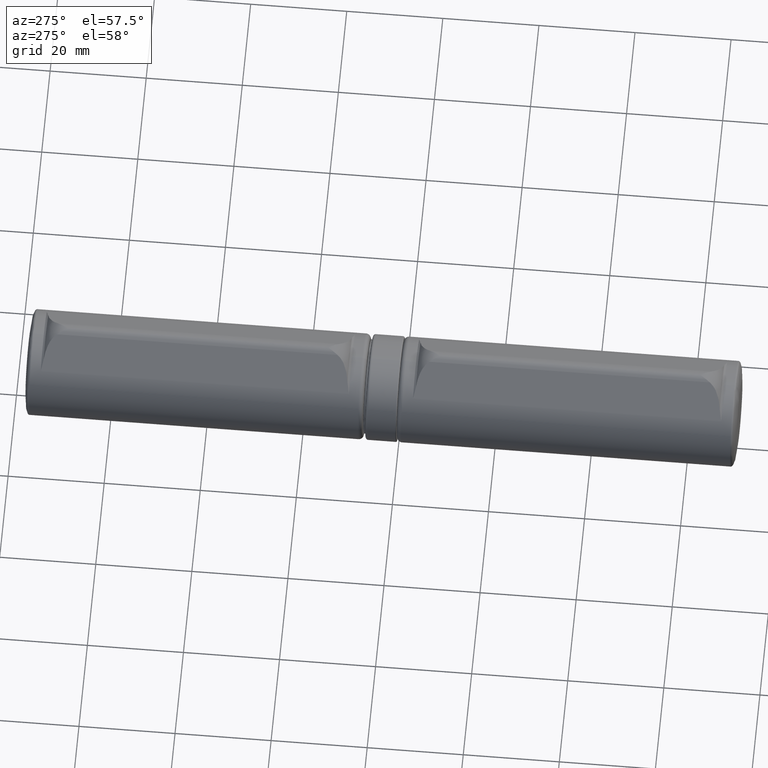
[diagram: clean part render]
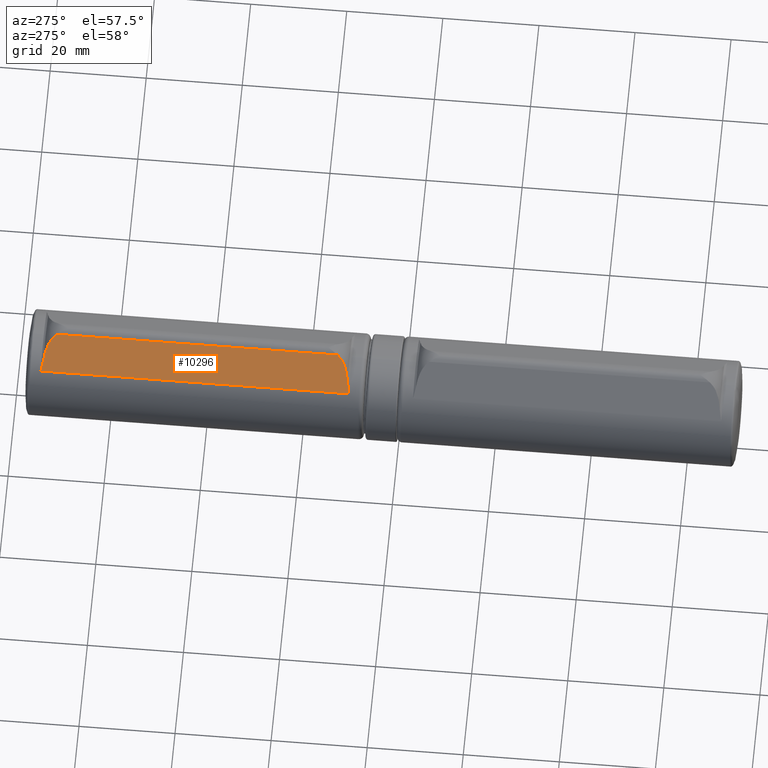
[diagram: same view with one face highlighted and labeled with its STEP entity id]
A machine part, auxiliary view. The second image highlights one B-rep face of the part: STEP entity #10296.
In plain terms, the highlighted planar face has unit normal (0.663, 0, -0.7486).
Its self-contained STEP definition (entity closure, byte-faithful):
#320 = FACE_OUTER_BOUND ( 'NONE', #8596, .T. ) ;
#464 = CARTESIAN_POINT ( 'NONE',  ( -7.293008042015047820, 32.06640379061051505, 8.234806233245794971 ) ) ;
#635 = CARTESIAN_POINT ( 'NONE',  ( -3.940691542818023585, 31.26865915691610809, 11.20372505119193818 ) ) ;
#707 = CARTESIAN_POINT ( 'NONE',  ( -1.873287189988682488, -29.96014211084137457, 13.03468453514550340 ) ) ;
#787 = DIRECTION ( 'NONE',  ( 0.000000000000000000, -1.000000000000000000, 0.000000000000000000 ) ) ;
#1165 = VERTEX_POINT ( 'NONE', #8442 ) ;
#1182 = CARTESIAN_POINT ( 'NONE',  ( -7.293008042015047820, 32.06640379061051505, 8.234806233245794971 ) ) ;
#1316 = VERTEX_POINT ( 'NONE', #10319 ) ;
#1503 = EDGE_CURVE ( 'NONE', #2105, #5676, #4286, .T. ) ;
#1531 = CARTESIAN_POINT ( 'NONE',  ( -1.351001462184552970, -29.20793136767814602, 13.49723749695378672 ) ) ;
#1583 = CARTESIAN_POINT ( 'NONE',  ( -5.758780296161766010, -31.66736844719444832, 9.593567444118917820 ) ) ;
#1591 = CARTESIAN_POINT ( 'NONE',  ( -4.695170118838901452, -31.48773122813856773, 10.53553466922110182 ) ) ;
#1843 = CARTESIAN_POINT ( 'NONE',  ( -7.293008042015047820, 35.25000000000000000, 8.234806233245794971 ) ) ;
#1874 = DIRECTION ( 'NONE',  ( 0.000000000000000000, -1.000000000000000000, 0.000000000000000000 ) ) ;
#2009 = VECTOR ( 'NONE', #787, 1000.000000000000000 ) ;
#2024 = CARTESIAN_POINT ( 'NONE',  ( -6.067205832993834314, 31.73636218328562109, 9.320415914287174530 ) ) ;
#2062 = CARTESIAN_POINT ( 'NONE',  ( -2.860889670684947816, 30.75107170427018133, 12.16003215960406258 ) ) ;
#2105 = VERTEX_POINT ( 'NONE', #5803 ) ;
#2246 = CARTESIAN_POINT ( 'NONE',  ( -5.447942985781646819, 31.62104201919538227, 9.868854917819076533 ) ) ;
#2530 = CARTESIAN_POINT ( 'NONE',  ( -7.293008042015047820, 35.25000000000000000, 8.234806233245794971 ) ) ;
#2656 = ORIENTED_EDGE ( 'NONE', *, *, #2752, .T. ) ;
#2752 = EDGE_CURVE ( 'NONE', #1165, #3689, #6572, .T. ) ;
#2868 = VERTEX_POINT ( 'NONE', #10192 ) ;
#3162 = CARTESIAN_POINT ( 'NONE',  ( -5.068691198825535871, 31.56451926592469803, 10.20473244230204024 ) ) ;
#3190 = CARTESIAN_POINT ( 'NONE',  ( -7.293008042015047820, -32.06640379061051505, 8.234806233245794971 ) ) ;
#3345 = CARTESIAN_POINT ( 'NONE',  ( -5.070549496298427883, -31.56479622200818014, 10.20308667456563789 ) ) ;
#3373 = CARTESIAN_POINT ( 'NONE',  ( -6.681502846419498987, -31.89214389153531570, 8.776374812140520731 ) ) ;
#3414 = DIRECTION ( 'NONE',  ( 0.6630007310922773067, 0.000000000000000000, -0.7486187484768905831 ) ) ;
#3576 = CARTESIAN_POINT ( 'NONE',  ( -1.587154504392913612, 29.62085348540324858, 13.28809280220448130 ) ) ;
#3672 = CARTESIAN_POINT ( 'NONE',  ( -6.681504807941669455, 31.89214442038468178, 8.776373074953680131 ) ) ;
#3689 = VERTEX_POINT ( 'NONE', #1531 ) ;
#4024 = CARTESIAN_POINT ( 'NONE',  ( -4.136579845280344614, -31.32583796848809143, 11.03024009905951353 ) ) ;
#4142 = PLANE ( 'NONE',  #6801 ) ;
#4188 = CARTESIAN_POINT ( 'NONE',  ( -1.586987748186617475, -29.62056190615778561, 13.28824048683956782 ) ) ;
#4286 = B_SPLINE_CURVE_WITH_KNOTS ( 'NONE', 3,
 ( #5291, #9507, #2024, #3672, #9545, #1182 ),
 .UNSPECIFIED., .F., .F.,
 ( 4, 2, 4 ),
 ( 0.000000000000000000, 0.001252526485368587019, 0.002505052970737174037 ),
 .UNSPECIFIED. ) ;
#4859 = CARTESIAN_POINT ( 'NONE',  ( -3.398271117733235869, -31.03961271975398617, 11.68410994553538984 ) ) ;
#5122 = CARTESIAN_POINT ( 'NONE',  ( -1.351001462184552748, 35.25000000000000000, 13.49723749695378672 ) ) ;
#5278 = ORIENTED_EDGE ( 'NONE', *, *, #1503, .T. ) ;
#5291 = CARTESIAN_POINT ( 'NONE',  ( -5.447942985781646819, 31.62104201919538227, 9.868854917819076533 ) ) ;
#5406 = CARTESIAN_POINT ( 'NONE',  ( -1.872568329513449203, 29.95895200636798705, 13.03532118099708015 ) ) ;
#5676 = VERTEX_POINT ( 'NONE', #464 ) ;
#5803 = CARTESIAN_POINT ( 'NONE',  ( -5.447942985781646819, 31.62104201919538227, 9.868854917819076533 ) ) ;
#6215 = EDGE_CURVE ( 'NONE', #2868, #3689, #7973, .T. ) ;
#6346 = CARTESIAN_POINT ( 'NONE',  ( -3.569870829633101650, 31.12809028156797808, 11.53213574681767106 ) ) ;
#6358 = EDGE_CURVE ( 'NONE', #2868, #2105, #7380, .T. ) ;
#6551 = CARTESIAN_POINT ( 'NONE',  ( -6.987265212205704401, -31.97933149418072318, 8.505581871849873465 ) ) ;
#6572 = B_SPLINE_CURVE_WITH_KNOTS ( 'NONE', 3,
 ( #7443, #3345, #1591, #4024, #8433, #6682, #4859, #9988, #7516, #707, #4188, #6596 ),
 .UNSPECIFIED., .F., .F.,
 ( 4, 2, 2, 2, 2, 4 ),
 ( 0.002461092890325597329, 0.003982605754971853436, 0.004743362187294978237, 0.005504118619618103038, 0.007025631484264350038, 0.008547144348910599640 ),
 .UNSPECIFIED. ) ;
#6596 = CARTESIAN_POINT ( 'NONE',  ( -1.351001462184552970, -29.20793136767814602, 13.49723749695378672 ) ) ;
#6682 = CARTESIAN_POINT ( 'NONE',  ( -3.582135124441387042, -31.12109352856002076, 11.52127409468730868 ) ) ;
#6714 = ORIENTED_EDGE ( 'NONE', *, *, #7675, .T. ) ;
#6801 = AXIS2_PLACEMENT_3D ( 'NONE', #2530, #3414, #8575 ) ;
#7141 = CARTESIAN_POINT ( 'NONE',  ( -2.351011572594682519, 30.38966351073067074, 12.61159652730065872 ) ) ;
#7380 = B_SPLINE_CURVE_WITH_KNOTS ( 'NONE', 3,
 ( #9302, #3576, #5406, #7141, #9729, #2062, #8834, #6346, #635, #9838, #3162, #2246 ),
 .UNSPECIFIED., .F., .F.,
 ( 4, 2, 2, 2, 2, 4 ),
 ( 4.315846893787297850E-07, 0.001529138967088140020, 0.002293492658287518086, 0.003057846349486896369, 0.004586553731885653802, 0.006115261114284412103 ),
 .UNSPECIFIED. ) ;
#7443 = CARTESIAN_POINT ( 'NONE',  ( -5.447942985781642378, -31.62104201919538227, 9.868854917819080086 ) ) ;
#7474 = CARTESIAN_POINT ( 'NONE',  ( -5.447942985781642378, -31.62104201919538227, 9.868854917819080086 ) ) ;
#7516 = CARTESIAN_POINT ( 'NONE',  ( -2.515940252614206951, -30.53758993470379934, 12.46553040799293477 ) ) ;
#7550 = CARTESIAN_POINT ( 'NONE',  ( -6.067204845374566169, -31.73636196425200140, 9.320416788954414500 ) ) ;
#7675 = EDGE_CURVE ( 'NONE', #5676, #1316, #8441, .T. ) ;
#7789 = VECTOR ( 'NONE', #1874, 1000.000000000000000 ) ;
#7973 = LINE ( 'NONE', #5122, #2009 ) ;
#8433 = CARTESIAN_POINT ( 'NONE',  ( -3.951137175203034868, -31.26407879760263597, 11.19447406472910167 ) ) ;
#8441 = LINE ( 'NONE', #1843, #7789 ) ;
#8442 = CARTESIAN_POINT ( 'NONE',  ( -5.447942985781642378, -31.62104201919538227, 9.868854917819080086 ) ) ;
#8575 = DIRECTION ( 'NONE',  ( -0.7486187484768904721, 0.000000000000000000, -0.6630007310922771957 ) ) ;
#8596 = EDGE_LOOP ( 'NONE', ( #6714, #10040, #2656, #10809, #9432, #5278 ) ) ;
#8834 = CARTESIAN_POINT ( 'NONE',  ( -3.035715932361759961, 30.85344858703625093, 12.00520042510411400 ) ) ;
#8918 = EDGE_CURVE ( 'NONE', #1316, #1165, #10166, .T. ) ;
#9302 = CARTESIAN_POINT ( 'NONE',  ( -1.351001462184442614, 29.20793136767795062, 13.49723749695388264 ) ) ;
#9432 = ORIENTED_EDGE ( 'NONE', *, *, #6358, .T. ) ;
#9507 = CARTESIAN_POINT ( 'NONE',  ( -5.758780793587663815, 31.66736852132957836, 9.593567003582613495 ) ) ;
#9545 = CARTESIAN_POINT ( 'NONE',  ( -6.987323153768381090, 31.97934799532358596, 8.505530556946936827 ) ) ;
#9729 = CARTESIAN_POINT ( 'NONE',  ( -2.519150998510784945, 30.51974603272012132, 12.46268686863312602 ) ) ;
#9838 = CARTESIAN_POINT ( 'NONE',  ( -4.691065978044095530, 31.48693990495932837, 10.53916942770531051 ) ) ;
#9988 = CARTESIAN_POINT ( 'NONE',  ( -2.860236993032548636, -30.76370890940604852, 12.16061019182886049 ) ) ;
#10040 = ORIENTED_EDGE ( 'NONE', *, *, #8918, .T. ) ;
#10166 = B_SPLINE_CURVE_WITH_KNOTS ( 'NONE', 3,
 ( #3190, #6551, #3373, #7550, #1583, #7474 ),
 .UNSPECIFIED., .F., .F.,
 ( 4, 2, 4 ),
 ( -2.097617699593522570E-05, 0.001231787720640657854, 0.002484551618277251218 ),
 .UNSPECIFIED. ) ;
#10192 = CARTESIAN_POINT ( 'NONE',  ( -1.351001462184442614, 29.20793136767795062, 13.49723749695388264 ) ) ;
#10296 = ADVANCED_FACE ( 'NONE', ( #320 ), #4142, .F. ) ;
#10319 = CARTESIAN_POINT ( 'NONE',  ( -7.293008042015047820, -32.06640379061051505, 8.234806233245794971 ) ) ;
#10809 = ORIENTED_EDGE ( 'NONE', *, *, #6215, .F. ) ;